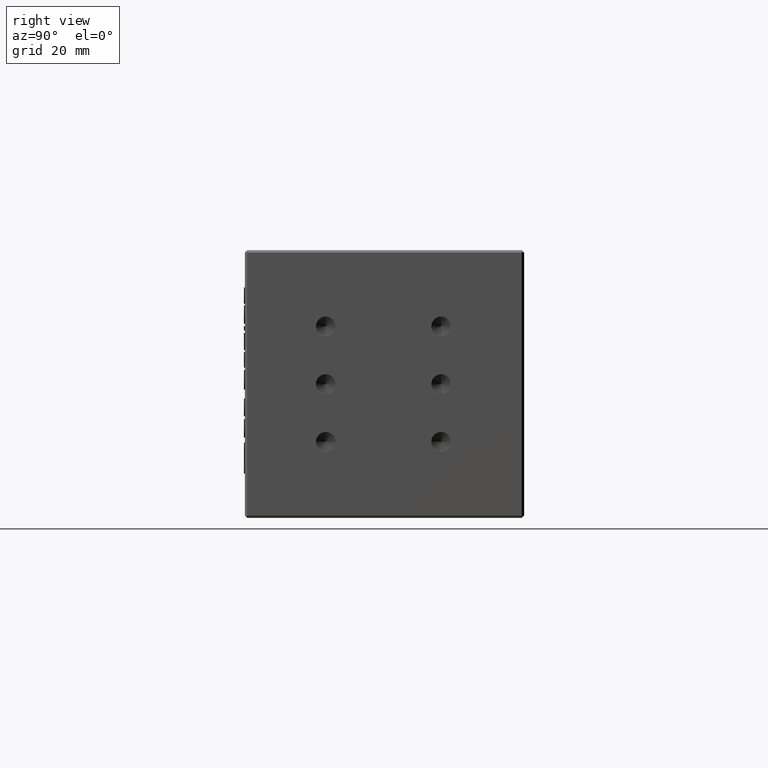
[diagram: clean part render]
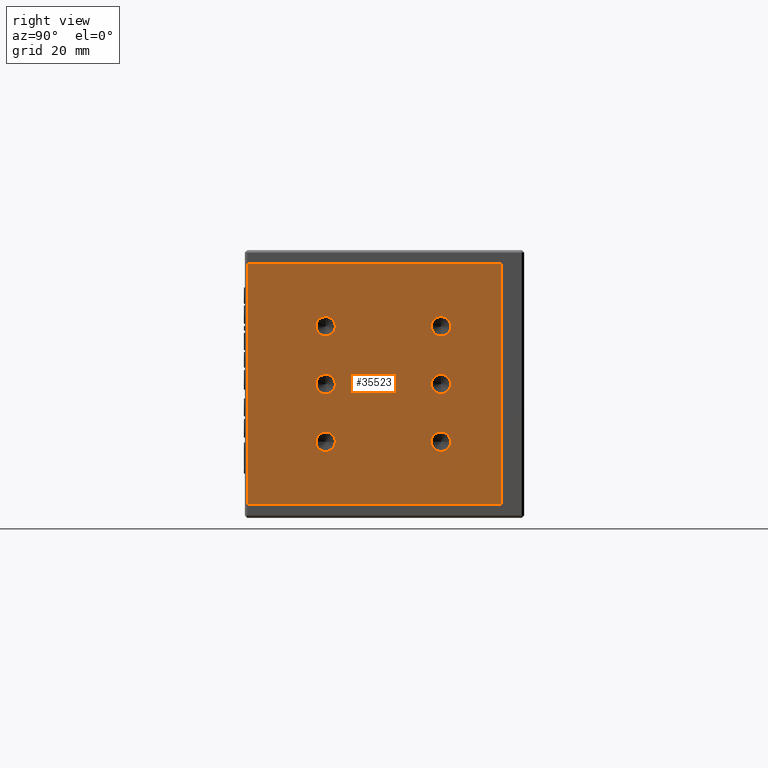
[diagram: same view with one face highlighted and labeled with its STEP entity id]
A machine part, right view. The second image highlights one B-rep face of the part: STEP entity #35523.
In plain terms, the highlighted planar face has unit normal (-1, -0, -0).
Its self-contained STEP definition (entity closure, byte-faithful):
#1244 = DIRECTION ( 'NONE',  ( 3.435095992033282500E-016, -3.435095992033281000E-016, -1.000000000000000000 ) ) ;
#1377 = DIRECTION ( 'NONE',  ( 0.0000000000000000000, 0.0000000000000000000, -1.000000000000000000 ) ) ;
#3002 = VERTEX_POINT ( 'NONE', #64869 ) ;
#3719 = DIRECTION ( 'NONE',  ( 0.0000000000000000000, 0.0000000000000000000, -1.000000000000000000 ) ) ;
#3855 = CIRCLE ( 'NONE', #25858, 2.099999999999997900 ) ;
#4078 = CARTESIAN_POINT ( 'NONE',  ( 33.42575077608849200, 34.77699333090262700, 39.40000000000957000 ) ) ;
#5186 = CIRCLE ( 'NONE', #25073, 2.099999999999994300 ) ;
#5401 = CIRCLE ( 'NONE', #54916, 2.099999999999990800 ) ;
#5697 = EDGE_LOOP ( 'NONE', ( #57057, #58405 ) ) ;
#5980 = DIRECTION ( 'NONE',  ( 1.000000000000000000, 3.435095992033282000E-016, 3.435095992033281500E-016 ) ) ;
#6686 = CARTESIAN_POINT ( 'NONE',  ( 33.42575077608852800, 9.776993330902618200, 16.50000000000957100 ) ) ;
#6798 = EDGE_LOOP ( 'NONE', ( #35978, #30773 ) ) ;
#7071 = LINE ( 'NONE', #8944, #61771 ) ;
#7565 = DIRECTION ( 'NONE',  ( 1.000000000000000000, 3.435095992033282000E-016, 3.435095992033281500E-016 ) ) ;
#8828 = LINE ( 'NONE', #21897, #37015 ) ;
#8944 = CARTESIAN_POINT ( 'NONE',  ( 33.42575077608850600, -7.723006669097370200, 55.00000000000955700 ) ) ;
#9529 = EDGE_CURVE ( 'NONE', #20364, #3002, #58993, .T. ) ;
#9555 = CARTESIAN_POINT ( 'NONE',  ( 33.42575077608852800, 9.776993330902621800, 29.00000000000959900 ) ) ;
#9947 = CARTESIAN_POINT ( 'NONE',  ( 33.42575077608850600, 34.77699333090262000, 16.50000000000956400 ) ) ;
#10450 = AXIS2_PLACEMENT_3D ( 'NONE', #56095, #24314, #61439 ) ;
#10636 = EDGE_LOOP ( 'NONE', ( #49177, #45525 ) ) ;
#10758 = ORIENTED_EDGE ( 'NONE', *, *, #54773, .F. ) ;
#11377 = VERTEX_POINT ( 'NONE', #66496 ) ;
#11520 = AXIS2_PLACEMENT_3D ( 'NONE', #39283, #7565, #44654 ) ;
#11612 = VERTEX_POINT ( 'NONE', #32244 ) ;
#11975 = DIRECTION ( 'NONE',  ( 0.0000000000000000000, 0.0000000000000000000, -1.000000000000000000 ) ) ;
#12667 = CARTESIAN_POINT ( 'NONE',  ( 33.42575077608850600, 34.77699333090262000, 18.60000000000955500 ) ) ;
#12952 = VERTEX_POINT ( 'NONE', #12667 ) ;
#13467 = AXIS2_PLACEMENT_3D ( 'NONE', #53141, #21401, #58491 ) ;
#13547 = EDGE_CURVE ( 'NONE', #55753, #39320, #42542, .T. ) ;
#13580 = VERTEX_POINT ( 'NONE', #33334 ) ;
#14437 = DIRECTION ( 'NONE',  ( -3.435095992033281000E-016, 1.000000000000000000, -3.435095992033282000E-016 ) ) ;
#14891 = DIRECTION ( 'NONE',  ( 0.0000000000000000000, 0.0000000000000000000, -1.000000000000000000 ) ) ;
#15260 = DIRECTION ( 'NONE',  ( 0.0000000000000000000, 0.0000000000000000000, -1.000000000000000000 ) ) ;
#16553 = CARTESIAN_POINT ( 'NONE',  ( 33.42575077608852800, 9.776993330902621800, 26.90000000000960500 ) ) ;
#16657 = FACE_OUTER_BOUND ( 'NONE', #40807, .T. ) ;
#16726 = VECTOR ( 'NONE', #1244, 1000.000000000000000 ) ;
#18109 = CIRCLE ( 'NONE', #67641, 2.099999999999994300 ) ;
#20364 = VERTEX_POINT ( 'NONE', #55184 ) ;
#20569 = EDGE_LOOP ( 'NONE', ( #29576, #35423 ) ) ;
#21316 = CARTESIAN_POINT ( 'NONE',  ( 33.42575077608849200, 34.77699333090262700, 41.50000000000956400 ) ) ;
#21401 = DIRECTION ( 'NONE',  ( 1.000000000000000000, 3.435095992033282000E-016, 3.435095992033281500E-016 ) ) ;
#21897 = CARTESIAN_POINT ( 'NONE',  ( 33.42575077608848500, 47.77699333090262700, 55.00000000000954300 ) ) ;
#21971 = DIRECTION ( 'NONE',  ( 1.000000000000000000, 3.435095992033282000E-016, 3.435095992033281500E-016 ) ) ;
#24014 = CIRCLE ( 'NONE', #51408, 2.099999999999990800 ) ;
#24314 = DIRECTION ( 'NONE',  ( 1.000000000000000000, 3.435095992033282000E-016, 3.435095992033281500E-016 ) ) ;
#25073 = AXIS2_PLACEMENT_3D ( 'NONE', #67162, #35480, #3719 ) ;
#25625 = EDGE_CURVE ( 'NONE', #61240, #34040, #26081, .T. ) ;
#25677 = EDGE_CURVE ( 'NONE', #11377, #12952, #5401, .T. ) ;
#25858 = AXIS2_PLACEMENT_3D ( 'NONE', #21316, #58415, #26612 ) ;
#26081 = CIRCLE ( 'NONE', #30087, 2.099999999999994300 ) ;
#26612 = DIRECTION ( 'NONE',  ( 0.0000000000000000000, 0.0000000000000000000, -1.000000000000000000 ) ) ;
#27018 = CARTESIAN_POINT ( 'NONE',  ( 33.42575077608852800, 9.776993330902618200, 16.50000000000957100 ) ) ;
#29061 = FACE_BOUND ( 'NONE', #10636, .T. ) ;
#29576 = ORIENTED_EDGE ( 'NONE', *, *, #63567, .F. ) ;
#29830 = CARTESIAN_POINT ( 'NONE',  ( 33.42575077608848500, 47.77699333090262700, 55.00000000000954300 ) ) ;
#30087 = AXIS2_PLACEMENT_3D ( 'NONE', #53695, #21971, #59084 ) ;
#30718 = FACE_BOUND ( 'NONE', #5697, .T. ) ;
#30773 = ORIENTED_EDGE ( 'NONE', *, *, #36585, .F. ) ;
#30893 = AXIS2_PLACEMENT_3D ( 'NONE', #27018, #64135, #32433 ) ;
#30908 = CIRCLE ( 'NONE', #30893, 2.099999999999990800 ) ;
#31864 = EDGE_CURVE ( 'NONE', #3002, #13580, #66198, .T. ) ;
#31908 = CARTESIAN_POINT ( 'NONE',  ( 33.42575077608850600, 9.776993330902628900, 43.60000000000955800 ) ) ;
#32244 = CARTESIAN_POINT ( 'NONE',  ( 33.42575077608848500, 47.77699333090262700, 55.00000000000954300 ) ) ;
#32433 = DIRECTION ( 'NONE',  ( 0.0000000000000000000, 0.0000000000000000000, -1.000000000000000000 ) ) ;
#33164 = DIRECTION ( 'NONE',  ( 1.000000000000000000, 3.435095992033282000E-016, 3.435095992033281500E-016 ) ) ;
#33334 = CARTESIAN_POINT ( 'NONE',  ( 33.42575077608850600, 47.77699333090260600, 3.000000000009529700 ) ) ;
#34014 = ORIENTED_EDGE ( 'NONE', *, *, #53690, .T. ) ;
#34040 = VERTEX_POINT ( 'NONE', #42369 ) ;
#34957 = PLANE ( 'NONE',  #40999 ) ;
#35173 = DIRECTION ( 'NONE',  ( -3.435095992033282500E-016, 3.435095992033281000E-016, 1.000000000000000000 ) ) ;
#35423 = ORIENTED_EDGE ( 'NONE', *, *, #36176, .F. ) ;
#35480 = DIRECTION ( 'NONE',  ( 1.000000000000000000, 3.435095992033282000E-016, 3.435095992033281500E-016 ) ) ;
#35523 = ADVANCED_FACE ( 'NONE', ( #16657, #30718, #44885, #57237, #58920, #43200, #29061 ), #34957, .F. ) ;
#35978 = ORIENTED_EDGE ( 'NONE', *, *, #48041, .F. ) ;
#36176 = EDGE_CURVE ( 'NONE', #41832, #40078, #18109, .T. ) ;
#36585 = EDGE_CURVE ( 'NONE', #44857, #54220, #65226, .T. ) ;
#37015 = VECTOR ( 'NONE', #59009, 1000.000000000000000 ) ;
#37724 = CARTESIAN_POINT ( 'NONE',  ( 33.42575077608850600, 9.776993330902628900, 41.50000000000957100 ) ) ;
#39283 = CARTESIAN_POINT ( 'NONE',  ( 33.42575077608852800, 9.776993330902621800, 29.00000000000959900 ) ) ;
#39320 = VERTEX_POINT ( 'NONE', #48077 ) ;
#39537 = CARTESIAN_POINT ( 'NONE',  ( 33.42575077608849200, 34.77699333090262700, 43.60000000000955800 ) ) ;
#40078 = VERTEX_POINT ( 'NONE', #16553 ) ;
#40365 = AXIS2_PLACEMENT_3D ( 'NONE', #6686, #43776, #11975 ) ;
#40514 = ORIENTED_EDGE ( 'NONE', *, *, #61581, .F. ) ;
#40807 = EDGE_LOOP ( 'NONE', ( #48671, #54989, #61946, #34014 ) ) ;
#40999 = AXIS2_PLACEMENT_3D ( 'NONE', #29830, #66835, #35173 ) ;
#41832 = VERTEX_POINT ( 'NONE', #65152 ) ;
#42369 = CARTESIAN_POINT ( 'NONE',  ( 33.42575077608849900, 34.77699333090262700, 31.10000000000955800 ) ) ;
#42542 = CIRCLE ( 'NONE', #40365, 2.099999999999990800 ) ;
#43061 = VECTOR ( 'NONE', #14437, 1000.000000000000000 ) ;
#43092 = DIRECTION ( 'NONE',  ( 0.0000000000000000000, 0.0000000000000000000, -1.000000000000000000 ) ) ;
#43200 = FACE_BOUND ( 'NONE', #45564, .T. ) ;
#43776 = DIRECTION ( 'NONE',  ( 1.000000000000000000, 3.435095992033282000E-016, 3.435095992033281500E-016 ) ) ;
#44654 = DIRECTION ( 'NONE',  ( 0.0000000000000000000, 0.0000000000000000000, -1.000000000000000000 ) ) ;
#44857 = VERTEX_POINT ( 'NONE', #31908 ) ;
#44885 = FACE_BOUND ( 'NONE', #20569, .T. ) ;
#45525 = ORIENTED_EDGE ( 'NONE', *, *, #65607, .F. ) ;
#45564 = EDGE_LOOP ( 'NONE', ( #61467, #40514 ) ) ;
#46305 = ORIENTED_EDGE ( 'NONE', *, *, #25677, .F. ) ;
#46353 = AXIS2_PLACEMENT_3D ( 'NONE', #37724, #5980, #43092 ) ;
#46643 = DIRECTION ( 'NONE',  ( 1.000000000000000000, 3.435095992033282000E-016, 3.435095992033281500E-016 ) ) ;
#46835 = CARTESIAN_POINT ( 'NONE',  ( 33.42575077608852800, 9.776993330902618200, 14.40000000000957800 ) ) ;
#46990 = DIRECTION ( 'NONE',  ( 1.000000000000000000, 3.435095992033282000E-016, 3.435095992033281500E-016 ) ) ;
#48041 = EDGE_CURVE ( 'NONE', #54220, #44857, #66580, .T. ) ;
#48077 = CARTESIAN_POINT ( 'NONE',  ( 33.42575077608852800, 9.776993330902618200, 18.60000000000956200 ) ) ;
#48671 = ORIENTED_EDGE ( 'NONE', *, *, #9529, .T. ) ;
#49177 = ORIENTED_EDGE ( 'NONE', *, *, #65061, .F. ) ;
#50624 = EDGE_CURVE ( 'NONE', #13580, #11612, #8828, .T. ) ;
#51408 = AXIS2_PLACEMENT_3D ( 'NONE', #9947, #46990, #15260 ) ;
#51506 = CARTESIAN_POINT ( 'NONE',  ( 33.42575077608852000, -7.723006669097388000, 3.000000000009550600 ) ) ;
#53141 = CARTESIAN_POINT ( 'NONE',  ( 33.42575077608849200, 34.77699333090262700, 41.50000000000956400 ) ) ;
#53568 = VERTEX_POINT ( 'NONE', #39537 ) ;
#53690 = EDGE_CURVE ( 'NONE', #11612, #20364, #7071, .T. ) ;
#53695 = CARTESIAN_POINT ( 'NONE',  ( 33.42575077608849900, 34.77699333090262700, 29.00000000000956400 ) ) ;
#54220 = VERTEX_POINT ( 'NONE', #61465 ) ;
#54773 = EDGE_CURVE ( 'NONE', #12952, #11377, #24014, .T. ) ;
#54811 = CIRCLE ( 'NONE', #13467, 2.099999999999997900 ) ;
#54916 = AXIS2_PLACEMENT_3D ( 'NONE', #64853, #33164, #1377 ) ;
#54989 = ORIENTED_EDGE ( 'NONE', *, *, #31864, .T. ) ;
#55184 = CARTESIAN_POINT ( 'NONE',  ( 33.42575077608850600, -7.223006669097370200, 55.00000000000955700 ) ) ;
#55753 = VERTEX_POINT ( 'NONE', #46835 ) ;
#56095 = CARTESIAN_POINT ( 'NONE',  ( 33.42575077608850600, 9.776993330902628900, 41.50000000000957100 ) ) ;
#56647 = DIRECTION ( 'NONE',  ( 3.435095992033281000E-016, -1.000000000000000000, 3.435095992033282000E-016 ) ) ;
#56730 = VERTEX_POINT ( 'NONE', #4078 ) ;
#57057 = ORIENTED_EDGE ( 'NONE', *, *, #13547, .F. ) ;
#57237 = FACE_BOUND ( 'NONE', #6798, .T. ) ;
#57292 = EDGE_CURVE ( 'NONE', #39320, #55753, #30908, .T. ) ;
#58405 = ORIENTED_EDGE ( 'NONE', *, *, #57292, .F. ) ;
#58415 = DIRECTION ( 'NONE',  ( 1.000000000000000000, 3.435095992033282000E-016, 3.435095992033281500E-016 ) ) ;
#58491 = DIRECTION ( 'NONE',  ( 0.0000000000000000000, 0.0000000000000000000, -1.000000000000000000 ) ) ;
#58699 = CIRCLE ( 'NONE', #11520, 2.099999999999994300 ) ;
#58920 = FACE_BOUND ( 'NONE', #59280, .T. ) ;
#58993 = LINE ( 'NONE', #59411, #16726 ) ;
#59009 = DIRECTION ( 'NONE',  ( -3.435095992033282500E-016, 3.435095992033281000E-016, 1.000000000000000000 ) ) ;
#59084 = DIRECTION ( 'NONE',  ( 0.0000000000000000000, 0.0000000000000000000, -1.000000000000000000 ) ) ;
#59280 = EDGE_LOOP ( 'NONE', ( #46305, #10758 ) ) ;
#59411 = CARTESIAN_POINT ( 'NONE',  ( 33.42575077608850600, -7.223006669097370200, 55.00000000000955700 ) ) ;
#61240 = VERTEX_POINT ( 'NONE', #63328 ) ;
#61439 = DIRECTION ( 'NONE',  ( 0.0000000000000000000, 0.0000000000000000000, -1.000000000000000000 ) ) ;
#61465 = CARTESIAN_POINT ( 'NONE',  ( 33.42575077608850600, 9.776993330902628900, 39.40000000000957700 ) ) ;
#61467 = ORIENTED_EDGE ( 'NONE', *, *, #25625, .F. ) ;
#61581 = EDGE_CURVE ( 'NONE', #34040, #61240, #5186, .T. ) ;
#61771 = VECTOR ( 'NONE', #56647, 1000.000000000000000 ) ;
#61946 = ORIENTED_EDGE ( 'NONE', *, *, #50624, .T. ) ;
#63328 = CARTESIAN_POINT ( 'NONE',  ( 33.42575077608849900, 34.77699333090262700, 26.90000000000957000 ) ) ;
#63567 = EDGE_CURVE ( 'NONE', #40078, #41832, #58699, .T. ) ;
#64135 = DIRECTION ( 'NONE',  ( 1.000000000000000000, 3.435095992033282000E-016, 3.435095992033281500E-016 ) ) ;
#64853 = CARTESIAN_POINT ( 'NONE',  ( 33.42575077608850600, 34.77699333090262000, 16.50000000000956400 ) ) ;
#64869 = CARTESIAN_POINT ( 'NONE',  ( 33.42575077608852000, -7.223006669097387100, 3.000000000009536800 ) ) ;
#65061 = EDGE_CURVE ( 'NONE', #56730, #53568, #54811, .T. ) ;
#65152 = CARTESIAN_POINT ( 'NONE',  ( 33.42575077608852800, 9.776993330902621800, 31.10000000000959400 ) ) ;
#65226 = CIRCLE ( 'NONE', #10450, 2.099999999999990800 ) ;
#65607 = EDGE_CURVE ( 'NONE', #53568, #56730, #3855, .T. ) ;
#66198 = LINE ( 'NONE', #51506, #43061 ) ;
#66496 = CARTESIAN_POINT ( 'NONE',  ( 33.42575077608850600, 34.77699333090262000, 14.40000000000957100 ) ) ;
#66580 = CIRCLE ( 'NONE', #46353, 2.099999999999990800 ) ;
#66835 = DIRECTION ( 'NONE',  ( -1.000000000000000000, -3.435095992033282000E-016, -3.435095992033281500E-016 ) ) ;
#67162 = CARTESIAN_POINT ( 'NONE',  ( 33.42575077608849900, 34.77699333090262700, 29.00000000000956400 ) ) ;
#67641 = AXIS2_PLACEMENT_3D ( 'NONE', #9555, #46643, #14891 ) ;